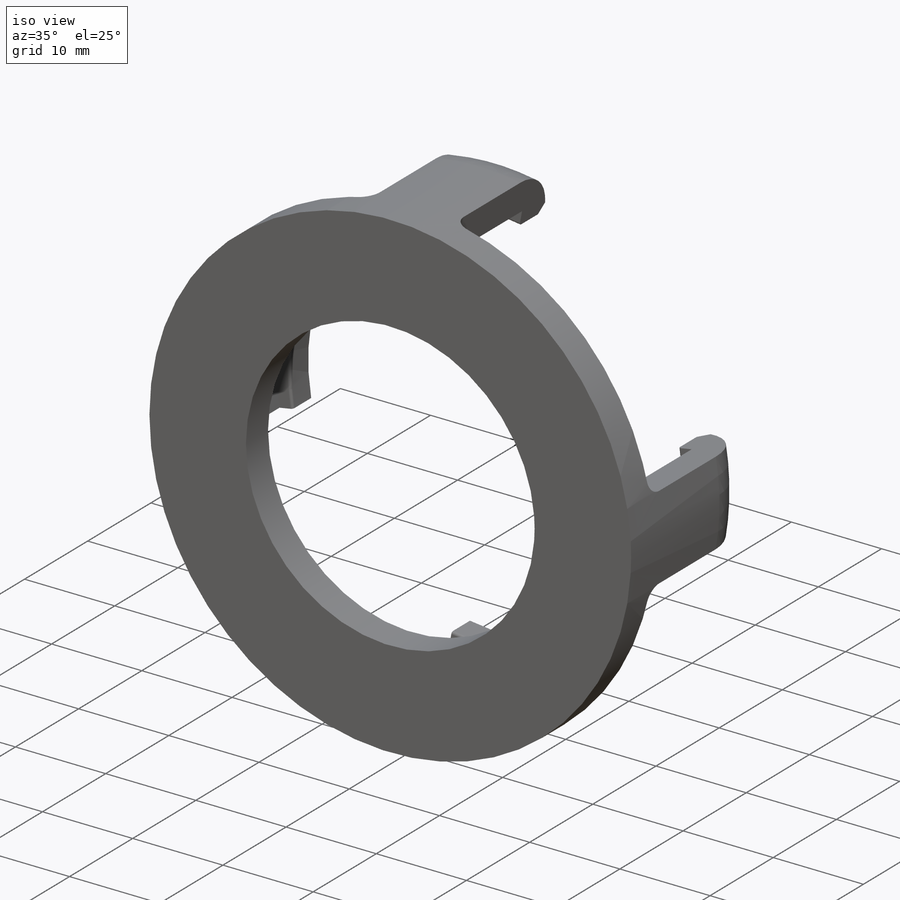
[diagram: iso view]
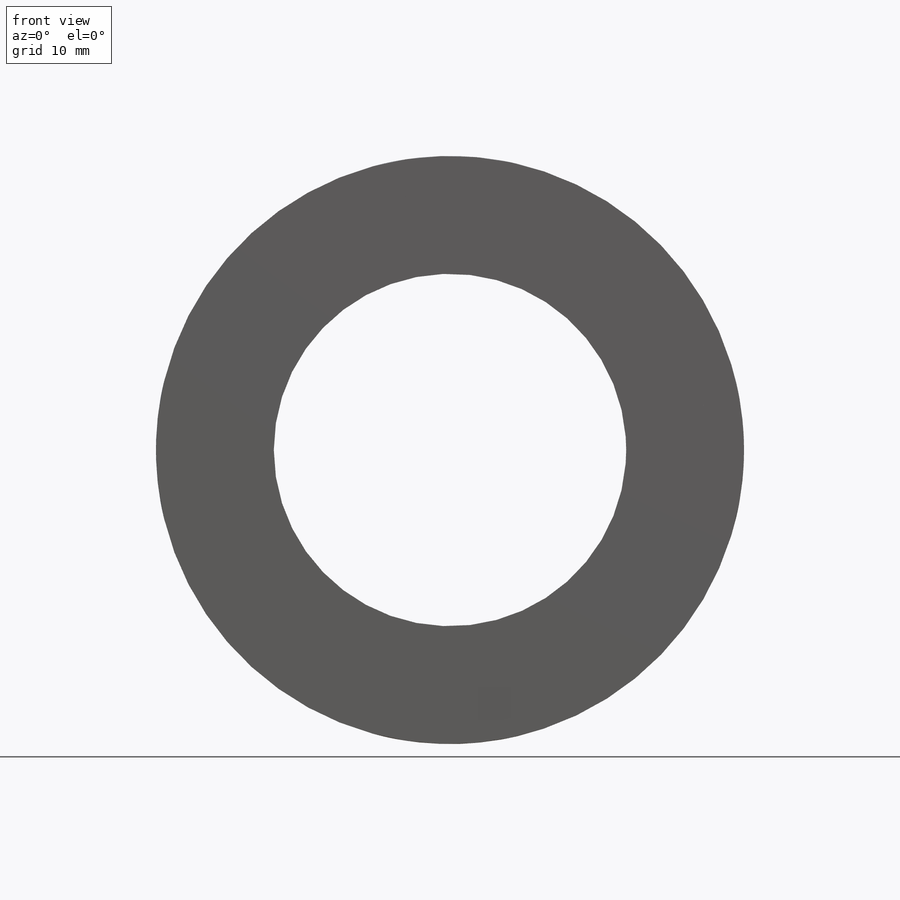
[diagram: front view]
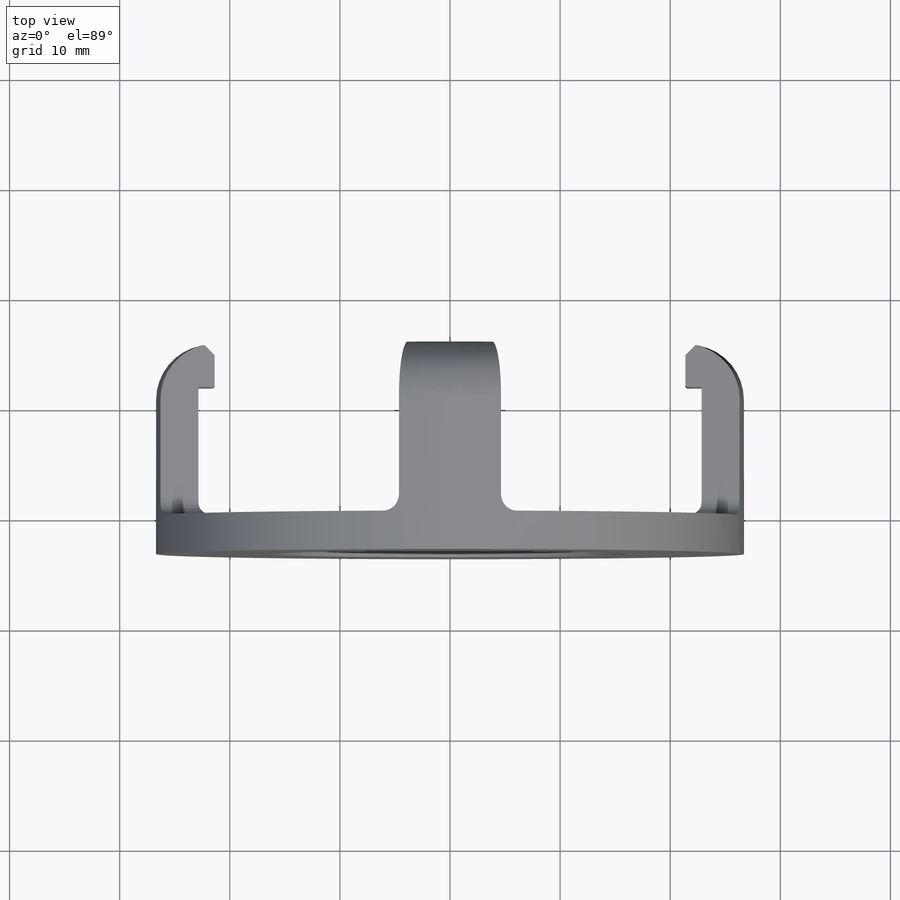
[diagram: top view]
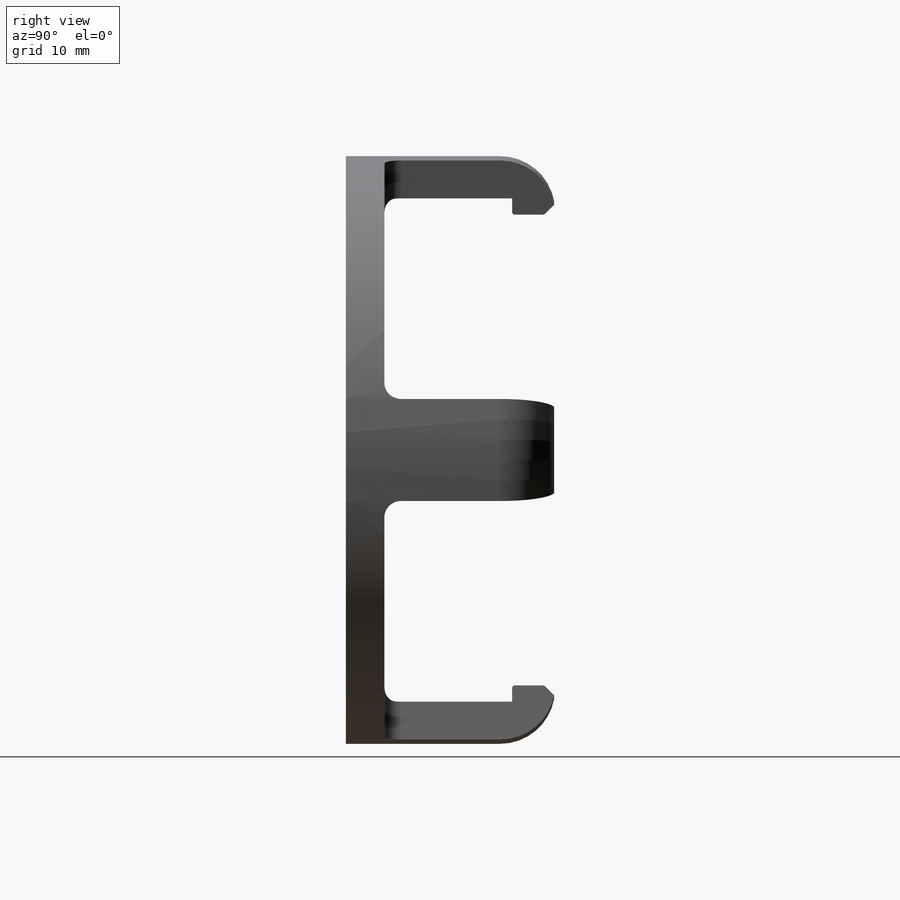
[diagram: right view]
SOLIDWORKS PART (.sldprt)
format: sldprt  version: not decoded by parser v0  size: 299,008 bytes
history: native  units: mm
features: sketch x4, fillet x4, extrude x2, plane x2, material x1, cut_extrude x1, cut_revolve x1, chamfer x1 (+13 scaffold rows collapsed)
feature tree (29):
  scaffold x13  (default folders/planes/origin — collapsed)
  material  "Material <not specified>"
  sketch  "Sketch1"  dims[D1=32.0mm D2=45.4mm D3=53.4mm]
  extrude  "Boss-Extrude1"  Depth=3.5mm
  sketch  "Sketch6"  dims[D1=43.4mm]
  extrude  "Boss-Extrude2"  Depth=15.5mm
  plane  "Plane2"  Offset=0mm
  sketch  "Sketch8"  dims[c1.D2=22.2mm c1.D1=280.0deg c2.D1=4.0]
  cut_extrude  "Cut-Extrude2"  [1 undecoded]
  plane  "Plane3"  Offset=0mm
  sketch  "Sketch9"  dims[c1.D1=11.5mm c1.D2=1.5mm c1.D3=4.0mm c2.D3=90.0deg c3.D3=11.5mm c3.D1=11.6mm]
  cut_revolve  "Cut-Revolve2"  Angle=360deg
  fillet  "Fillet1"  Radius=0.25mm
  fillet  "Fillet3"  Radius=1.5mm
  fillet  "Fillet4"  Radius=5mm
  chamfer  "Chamfer1"  Distance=1mm Angle=45deg
  fillet  "Fillet5"  Radius=1mm
decode coverage: 12 of 13 modeling features carry decoded parameters
note: 1 parameter value undecoded
note: suppression state not decoded; provenance and decode notes live in map.json
